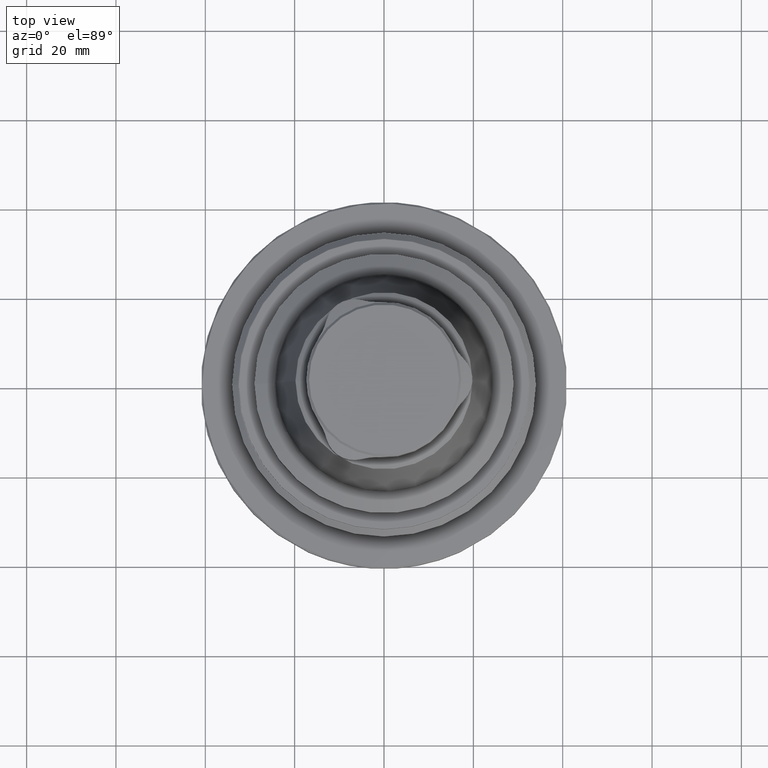
[diagram: clean part render]
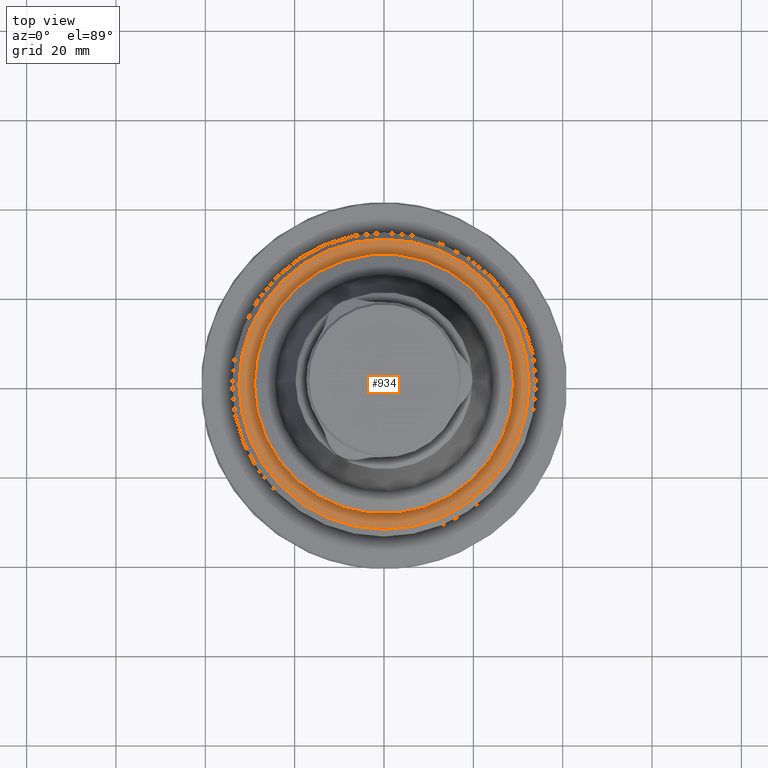
[diagram: same view with one face highlighted and labeled with its STEP entity id]
A machine part, top view. The second image highlights one B-rep face of the part: STEP entity #934.
In plain terms, the highlighted planar face has unit normal (0, -0, 1).
Its self-contained STEP definition (entity closure, byte-faithful):
#20=PLANE('',#1026);
#67=CIRCLE('',#1024,32.48);
#69=CIRCLE('',#1027,29.);
#197=ORIENTED_EDGE('',*,*,#452,.F.);
#198=ORIENTED_EDGE('',*,*,#454,.T.);
#452=EDGE_CURVE('',#583,#583,#67,.T.);
#454=EDGE_CURVE('',#585,#585,#69,.T.);
#583=VERTEX_POINT('',#1487);
#585=VERTEX_POINT('',#1492);
#724=EDGE_LOOP('',(#197));
#725=EDGE_LOOP('',(#198));
#819=FACE_BOUND('',#724,.T.);
#820=FACE_BOUND('',#725,.T.);
#934=ADVANCED_FACE('',(#819,#820),#20,.T.);
#1024=AXIS2_PLACEMENT_3D('',#1486,#1170,#1171);
#1026=AXIS2_PLACEMENT_3D('',#1490,#1174,#1175);
#1027=AXIS2_PLACEMENT_3D('',#1491,#1176,#1177);
#1170=DIRECTION('',(-5.2112629750951E-18,6.90472121537616E-17,-1.));
#1171=DIRECTION('',(-1.,6.12303176911188E-17,1.08491142720197E-17));
#1174=DIRECTION('',(5.2112629750951E-18,-6.90472121537616E-17,1.));
#1175=DIRECTION('',(2.8327492261615E-16,1.,6.90472121537612E-17));
#1176=DIRECTION('',(1.22461692971323E-16,-7.49836836562635E-33,-1.));
#1177=DIRECTION('',(-1.,6.12303176911189E-17,-1.22461692971323E-16));
#1486=CARTESIAN_POINT('',(7.41400110335705E-15,-9.52360330964918E-18,12.46));
#1487=CARTESIAN_POINT('',(-32.48,1.97923711529789E-15,12.46));
#1490=CARTESIAN_POINT('',(7.41400110335705E-15,-9.52360330964918E-18,12.46));
#1491=CARTESIAN_POINT('',(7.4139489907273E-15,-4.53958452047983E-31,12.46));
#1492=CARTESIAN_POINT('',(-29.,1.77567921304245E-15,12.46));